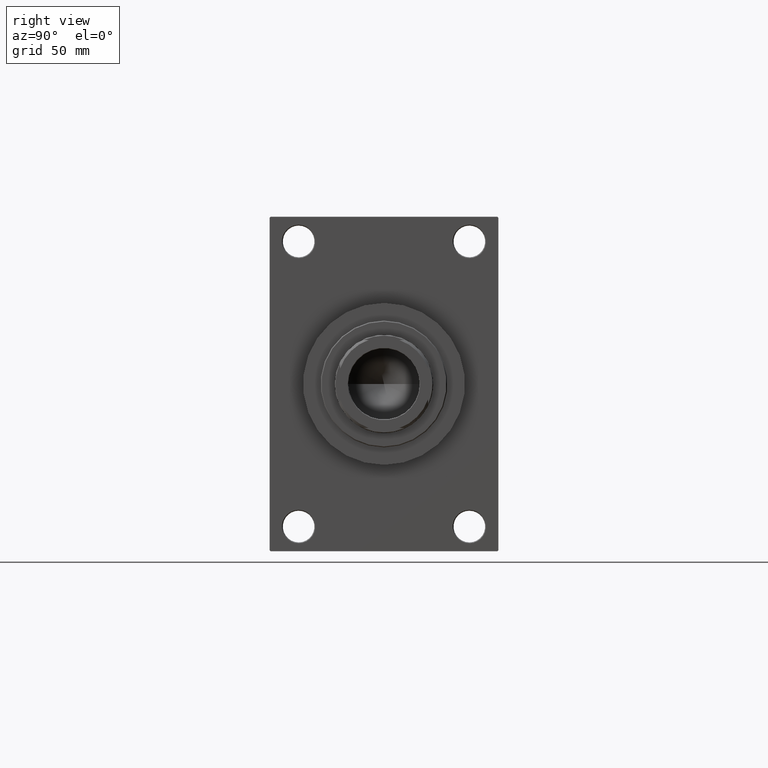
[diagram: clean part render]
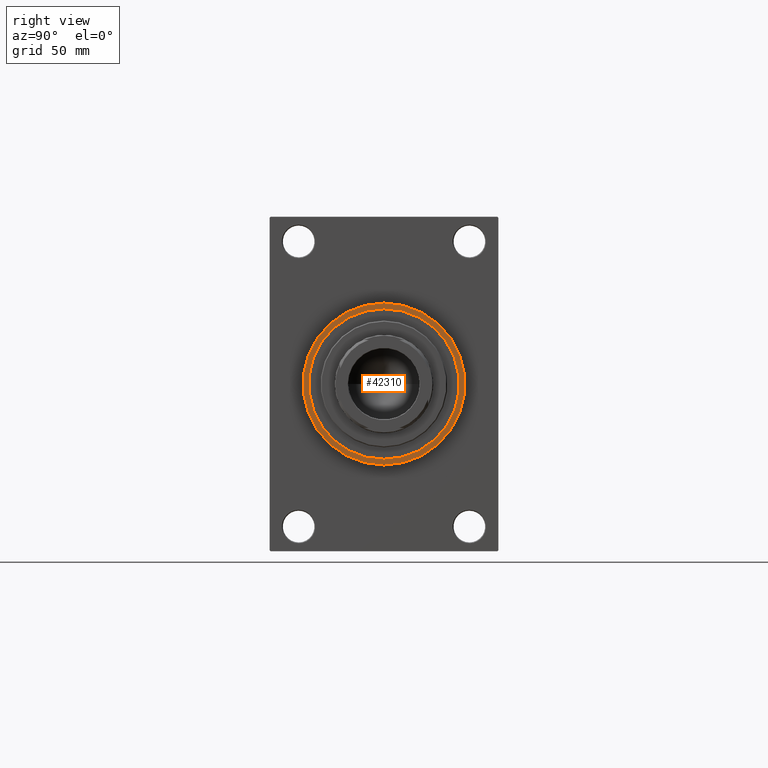
[diagram: same view with one face highlighted and labeled with its STEP entity id]
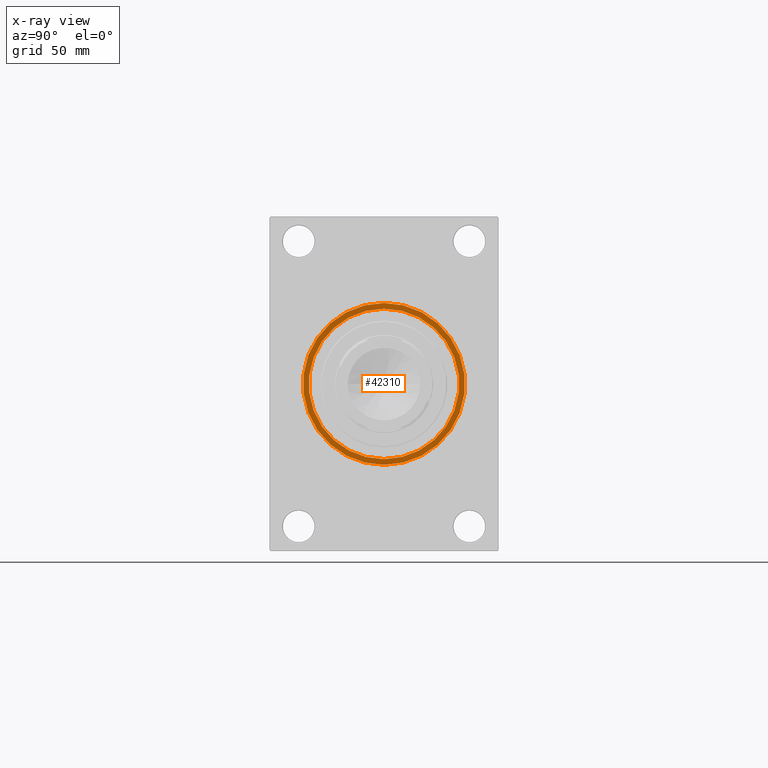
[diagram: x-ray of the same camera — body ghosted, the highlighted face saturated]
A machine part, right view. The second image highlights one B-rep face of the part: STEP entity #42310.
The next image is the same camera in x-ray: the body ghosted, the highlighted face saturated — about 0% of this face is hidden behind the body in this view.
In plain terms, the highlighted planar face has unit normal (1, 0, 0).
Its self-contained STEP definition (entity closure, byte-faithful):
#140 = EDGE_LOOP ( 'NONE', ( #8415, #8786 ) ) ;
#930 = ORIENTED_EDGE ( 'NONE', *, *, #33268, .F. ) ;
#6116 = CIRCLE ( 'NONE', #37705, 42.75000000000000000 ) ;
#6268 = DIRECTION ( 'NONE',  ( 0.000000000000000000, 0.000000000000000000, -1.000000000000000000 ) ) ;
#6432 = CARTESIAN_POINT ( 'NONE',  ( 291.0000000000000000, 5.633375276077824704E-15, -46.00000000000000000 ) ) ;
#7068 = AXIS2_PLACEMENT_3D ( 'NONE', #7756, #41314, #14769 ) ;
#7756 = CARTESIAN_POINT ( 'NONE',  ( 291.0000000000000000, 0.000000000000000000, 0.000000000000000000 ) ) ;
#8415 = ORIENTED_EDGE ( 'NONE', *, *, #42136, .T. ) ;
#8538 = DIRECTION ( 'NONE',  ( 0.000000000000000000, 0.000000000000000000, -1.000000000000000000 ) ) ;
#8585 = VERTEX_POINT ( 'NONE', #11153 ) ;
#8786 = ORIENTED_EDGE ( 'NONE', *, *, #15023, .T. ) ;
#11153 = CARTESIAN_POINT ( 'NONE',  ( 291.0000000000000000, 0.000000000000000000, 46.00000000000000000 ) ) ;
#11266 = VERTEX_POINT ( 'NONE', #6432 ) ;
#13878 = DIRECTION ( 'NONE',  ( 1.000000000000000000, 0.000000000000000000, 0.000000000000000000 ) ) ;
#14753 = AXIS2_PLACEMENT_3D ( 'NONE', #26960, #13878, #41712 ) ;
#14769 = DIRECTION ( 'NONE',  ( 0.000000000000000000, 0.000000000000000000, -1.000000000000000000 ) ) ;
#15023 = EDGE_CURVE ( 'NONE', #11266, #8585, #46207, .T. ) ;
#17022 = FACE_OUTER_BOUND ( 'NONE', #140, .T. ) ;
#17040 = CIRCLE ( 'NONE', #44030, 46.00000000000000000 ) ;
#19874 = DIRECTION ( 'NONE',  ( 1.000000000000000000, 0.000000000000000000, 0.000000000000000000 ) ) ;
#21910 = DIRECTION ( 'NONE',  ( 1.000000000000000000, 0.000000000000000000, 0.000000000000000000 ) ) ;
#23170 = VERTEX_POINT ( 'NONE', #31268 ) ;
#24492 = FACE_BOUND ( 'NONE', #29090, .T. ) ;
#26960 = CARTESIAN_POINT ( 'NONE',  ( 291.0000000000000000, 0.000000000000000000, 0.000000000000000000 ) ) ;
#27890 = CIRCLE ( 'NONE', #7068, 42.75000000000000000 ) ;
#28821 = CARTESIAN_POINT ( 'NONE',  ( 291.0000000000000000, 0.000000000000000000, 0.000000000000000000 ) ) ;
#29090 = EDGE_LOOP ( 'NONE', ( #930, #47099 ) ) ;
#30251 = CARTESIAN_POINT ( 'NONE',  ( 291.0000000000000000, 0.000000000000000000, 0.000000000000000000 ) ) ;
#30709 = AXIS2_PLACEMENT_3D ( 'NONE', #30251, #19874, #8538 ) ;
#31268 = CARTESIAN_POINT ( 'NONE',  ( 291.0000000000000000, 5.235365066354935472E-15, 42.75000000000000000 ) ) ;
#31973 = DIRECTION ( 'NONE',  ( 0.000000000000000000, 0.000000000000000000, -1.000000000000000000 ) ) ;
#33268 = EDGE_CURVE ( 'NONE', #42007, #23170, #6116, .T. ) ;
#34503 = CARTESIAN_POINT ( 'NONE',  ( 291.0000000000000000, 0.000000000000000000, -42.75000000000000000 ) ) ;
#36643 = CARTESIAN_POINT ( 'NONE',  ( 291.0000000000000000, 0.000000000000000000, 0.000000000000000000 ) ) ;
#37705 = AXIS2_PLACEMENT_3D ( 'NONE', #28821, #39238, #31973 ) ;
#39238 = DIRECTION ( 'NONE',  ( 1.000000000000000000, 0.000000000000000000, 0.000000000000000000 ) ) ;
#39577 = EDGE_CURVE ( 'NONE', #23170, #42007, #27890, .T. ) ;
#41314 = DIRECTION ( 'NONE',  ( 1.000000000000000000, 0.000000000000000000, 0.000000000000000000 ) ) ;
#41712 = DIRECTION ( 'NONE',  ( 0.000000000000000000, 0.000000000000000000, -1.000000000000000000 ) ) ;
#42007 = VERTEX_POINT ( 'NONE', #34503 ) ;
#42136 = EDGE_CURVE ( 'NONE', #8585, #11266, #17040, .T. ) ;
#42310 = ADVANCED_FACE ( 'NONE', ( #24492, #17022 ), #45593, .T. ) ;
#44030 = AXIS2_PLACEMENT_3D ( 'NONE', #36643, #21910, #6268 ) ;
#45593 = PLANE ( 'NONE',  #14753 ) ;
#46207 = CIRCLE ( 'NONE', #30709, 46.00000000000000000 ) ;
#47099 = ORIENTED_EDGE ( 'NONE', *, *, #39577, .F. ) ;